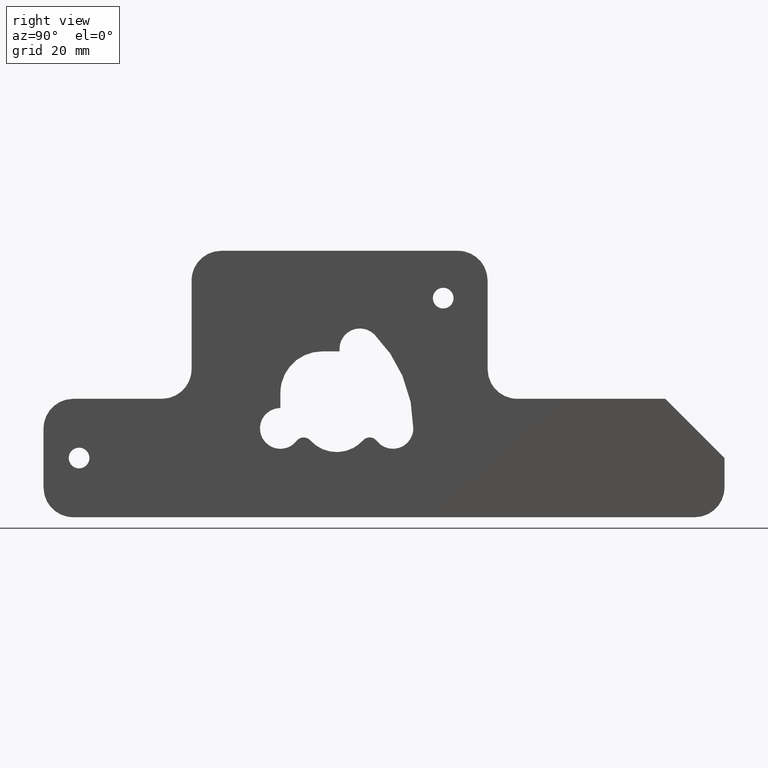
[diagram: clean part render]
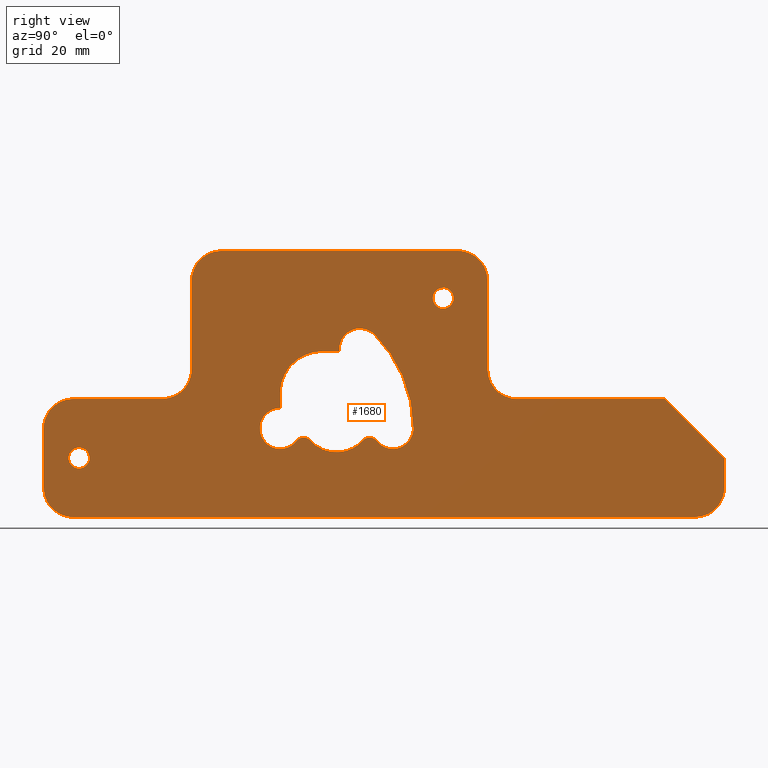
[diagram: same view with one face highlighted and labeled with its STEP entity id]
A machine part, right view. The second image highlights one B-rep face of the part: STEP entity #1680.
In plain terms, the highlighted face is a freeform B-spline surface patch.
Its self-contained STEP definition (entity closure, byte-faithful):
#96=CARTESIAN_POINT('',(3.200000000000000,-41.755394666050243,-5.137303418580988));
#97=VERTEX_POINT('',#96);
#103=CARTESIAN_POINT('',(3.200000000000000,-43.500000000000000,-3.249999999999901));
#104=VERTEX_POINT('',#103);
#105=CARTESIAN_POINT('',(3.200000000000000,-41.755394666050243,-5.137303418580988));
#106=CARTESIAN_POINT('',(3.200000000000000,-41.749999999999986,-5.068757688325588));
#107=CARTESIAN_POINT('',(3.200000000000000,-41.749999999999993,-4.999999999999901));
#108=CARTESIAN_POINT('',(3.200000000000000,-41.749999999999986,-3.249999999999901));
#109=CARTESIAN_POINT('',(3.200000000000000,-43.500000000000000,-3.249999999999901));
#117=(BOUNDED_CURVE()B_SPLINE_CURVE(2,(#105,#106,#107,#108,#109),.UNSPECIFIED.,.F.,.U.)B_SPLINE_CURVE_WITH_KNOTS((3,2,3),(0.736331300424975,0.750000000000000,1.0),.UNSPECIFIED.)CURVE()GEOMETRIC_REPRESENTATION_ITEM()RATIONAL_B_SPLINE_CURVE((0.969723355738170,0.983986122337908,1.0,0.707106781186547,1.0))REPRESENTATION_ITEM(''));
#118=EDGE_CURVE('',#97,#104,#117,.T.);
#120=CARTESIAN_POINT('',(3.200000000000000,-45.244605333949757,-4.862696581418814));
#121=VERTEX_POINT('',#120);
#122=CARTESIAN_POINT('',(3.200000000000000,-43.500000000000000,-3.249999999999901));
#123=CARTESIAN_POINT('',(3.200000000000001,-45.117683358434938,-3.249999999999901));
#124=CARTESIAN_POINT('',(3.200000000000000,-45.244605333949757,-4.862696581418814));
#132=(BOUNDED_CURVE()B_SPLINE_CURVE(2,(#122,#123,#124),.UNSPECIFIED.,.F.,.U.)B_SPLINE_CURVE_WITH_KNOTS((3,3),(0.0,0.236331300424976),.UNSPECIFIED.)CURVE()GEOMETRIC_REPRESENTATION_ITEM()RATIONAL_B_SPLINE_CURVE((1.0,0.723120658848639,0.969723355738171))REPRESENTATION_ITEM(''));
#133=EDGE_CURVE('',#104,#121,#132,.T.);
#179=CARTESIAN_POINT('',(3.200000000000000,-43.500000000000000,-6.749999999999901));
#180=VERTEX_POINT('',#179);
#181=CARTESIAN_POINT('',(3.200000000000001,-45.244605333949757,-4.862696581418815));
#182=CARTESIAN_POINT('',(3.200000000000000,-45.249999999999993,-4.931242311674215));
#183=CARTESIAN_POINT('',(3.200000000000000,-45.250000000000000,-4.999999999999901));
#184=CARTESIAN_POINT('',(3.200000000000000,-45.250000000000000,-6.749999999999902));
#185=CARTESIAN_POINT('',(3.200000000000000,-43.500000000000000,-6.749999999999901));
#193=(BOUNDED_CURVE()B_SPLINE_CURVE(2,(#181,#182,#183,#184,#185),.UNSPECIFIED.,.F.,.U.)B_SPLINE_CURVE_WITH_KNOTS((3,2,3),(0.236331300424975,0.250000000000000,0.500000000000000),.UNSPECIFIED.)CURVE()GEOMETRIC_REPRESENTATION_ITEM()RATIONAL_B_SPLINE_CURVE((0.969723355738171,0.983986122337908,1.0,0.707106781186547,1.0))REPRESENTATION_ITEM(''));
#194=EDGE_CURVE('',#121,#180,#193,.T.);
#196=CARTESIAN_POINT('',(3.200000000000000,-43.500000000000000,-6.749999999999901));
#197=CARTESIAN_POINT('',(3.200000000000000,-41.882316641565069,-6.749999999999901));
#198=CARTESIAN_POINT('',(3.200000000000001,-41.755394666050236,-5.137303418580988));
#206=(BOUNDED_CURVE()B_SPLINE_CURVE(2,(#196,#197,#198),.UNSPECIFIED.,.F.,.U.)B_SPLINE_CURVE_WITH_KNOTS((3,3),(0.500000000000000,0.736331300424975),.UNSPECIFIED.)CURVE()GEOMETRIC_REPRESENTATION_ITEM()RATIONAL_B_SPLINE_CURVE((1.0,0.723120658848641,0.969723355738169))REPRESENTATION_ITEM(''));
#207=EDGE_CURVE('',#180,#97,#206,.T.);
#278=CARTESIAN_POINT('',(3.200000000000000,19.744605333949760,21.862696581418920));
#279=VERTEX_POINT('',#278);
#285=CARTESIAN_POINT('',(3.200000000000000,18.0,23.750000000000000));
#286=VERTEX_POINT('',#285);
#287=CARTESIAN_POINT('',(3.200000000000001,19.744605333949757,21.862696581418916));
#288=CARTESIAN_POINT('',(3.200000000000000,19.750000000000004,21.931242311674314));
#289=CARTESIAN_POINT('',(3.200000000000000,19.750000000000000,22.0));
#290=CARTESIAN_POINT('',(3.200000000000000,19.749999999999996,23.749999999999996));
#291=CARTESIAN_POINT('',(3.200000000000000,18.0,23.750000000000000));
#299=(BOUNDED_CURVE()B_SPLINE_CURVE(2,(#287,#288,#289,#290,#291),.UNSPECIFIED.,.F.,.U.)B_SPLINE_CURVE_WITH_KNOTS((3,2,3),(0.736331300424976,0.750000000000000,1.0),.UNSPECIFIED.)CURVE()GEOMETRIC_REPRESENTATION_ITEM()RATIONAL_B_SPLINE_CURVE((0.969723355738171,0.983986122337908,1.0,0.707106781186547,1.0))REPRESENTATION_ITEM(''));
#300=EDGE_CURVE('',#279,#286,#299,.T.);
#302=CARTESIAN_POINT('',(3.200000000000000,16.255394666050240,22.137303418581080));
#303=VERTEX_POINT('',#302);
#304=CARTESIAN_POINT('',(3.200000000000000,18.0,23.750000000000000));
#305=CARTESIAN_POINT('',(3.200000000000001,16.382316641565065,23.750000000000004));
#306=CARTESIAN_POINT('',(3.200000000000000,16.255394666050240,22.137303418581087));
#314=(BOUNDED_CURVE()B_SPLINE_CURVE(2,(#304,#305,#306),.UNSPECIFIED.,.F.,.U.)B_SPLINE_CURVE_WITH_KNOTS((3,3),(0.0,0.236331300424975),.UNSPECIFIED.)CURVE()GEOMETRIC_REPRESENTATION_ITEM()RATIONAL_B_SPLINE_CURVE((1.0,0.723120658848639,0.969723355738171))REPRESENTATION_ITEM(''));
#315=EDGE_CURVE('',#286,#303,#314,.T.);
#361=CARTESIAN_POINT('',(3.200000000000000,18.0,20.250000000000000));
#362=VERTEX_POINT('',#361);
#363=CARTESIAN_POINT('',(3.200000000000000,16.255394666050247,22.137303418581084));
#364=CARTESIAN_POINT('',(3.200000000000000,16.249999999999996,22.068757688325686));
#365=CARTESIAN_POINT('',(3.200000000000000,16.250000000000000,22.0));
#366=CARTESIAN_POINT('',(3.200000000000000,16.249999999999993,20.249999999999993));
#367=CARTESIAN_POINT('',(3.200000000000000,18.0,20.250000000000000));
#375=(BOUNDED_CURVE()B_SPLINE_CURVE(2,(#363,#364,#365,#366,#367),.UNSPECIFIED.,.F.,.U.)B_SPLINE_CURVE_WITH_KNOTS((3,2,3),(0.236331300424975,0.250000000000000,0.500000000000000),.UNSPECIFIED.)CURVE()GEOMETRIC_REPRESENTATION_ITEM()RATIONAL_B_SPLINE_CURVE((0.969723355738170,0.983986122337908,1.0,0.707106781186547,1.0))REPRESENTATION_ITEM(''));
#376=EDGE_CURVE('',#303,#362,#375,.T.);
#378=CARTESIAN_POINT('',(3.200000000000000,18.0,20.250000000000000));
#379=CARTESIAN_POINT('',(3.200000000000000,19.617683358434917,20.249999999999996));
#380=CARTESIAN_POINT('',(3.200000000000001,19.744605333949753,21.862696581418920));
#388=(BOUNDED_CURVE()B_SPLINE_CURVE(2,(#378,#379,#380),.UNSPECIFIED.,.F.,.U.)B_SPLINE_CURVE_WITH_KNOTS((3,3),(0.500000000000000,0.736331300424975),.UNSPECIFIED.)CURVE()GEOMETRIC_REPRESENTATION_ITEM()RATIONAL_B_SPLINE_CURVE((1.0,0.723120658848641,0.969723355738169))REPRESENTATION_ITEM(''));
#389=EDGE_CURVE('',#362,#279,#388,.T.);
#445=CARTESIAN_POINT('',(3.200000000000000,6.764626871509701,-2.102435218486835));
#446=VERTEX_POINT('',#445);
#452=CARTESIAN_POINT('',(3.200000000000000,12.949999999999999,0.0));
#453=VERTEX_POINT('',#452);
#454=CARTESIAN_POINT('',(3.200000000000000,6.764626871509701,-2.102435218486837));
#455=CARTESIAN_POINT('',(3.200000000000000,8.270568713959827,-4.061740700380274));
#456=CARTESIAN_POINT('',(3.200000000000000,10.610284356979861,-3.266461180948823));
#457=CARTESIAN_POINT('',(3.200000000000000,12.949999999999891,-2.471181661517373));
#458=CARTESIAN_POINT('',(3.200000000000000,12.949999999999999,0.0));
#466=(BOUNDED_CURVE()B_SPLINE_CURVE(2,(#454,#455,#456,#457,#458),.UNSPECIFIED.,.F.,.U.)B_SPLINE_CURVE_WITH_KNOTS((3,2,3),(0.0,0.500000000000000,1.0),.UNSPECIFIED.)CURVE()GEOMETRIC_REPRESENTATION_ITEM()RATIONAL_B_SPLINE_CURVE((1.0,0.812964191323276,1.0,0.812964191323276,1.0))REPRESENTATION_ITEM(''));
#467=EDGE_CURVE('',#446,#453,#466,.T.);
#507=CARTESIAN_POINT('',(3.200000000000000,6.374547395093690,15.874547395093799));
#508=VERTEX_POINT('',#507);
#509=CARTESIAN_POINT('',(3.200000000000000,12.949999999999999,0.0));
#510=CARTESIAN_POINT('',(3.200000000000000,12.950000000000003,9.299094475276030));
#511=CARTESIAN_POINT('',(3.200000000000000,6.374547395093690,15.874547395093799));
#519=(BOUNDED_CURVE()B_SPLINE_CURVE(2,(#509,#510,#511),.UNSPECIFIED.,.F.,.U.)CURVE()GEOMETRIC_REPRESENTATION_ITEM()QUASI_UNIFORM_CURVE()RATIONAL_B_SPLINE_CURVE((1.0,0.923879532511286,1.0))REPRESENTATION_ITEM(''));
#520=EDGE_CURVE('',#453,#508,#519,.T.);
#566=CARTESIAN_POINT('',(3.200000000000000,0.485029000000000,13.435029000000201));
#567=VERTEX_POINT('',#566);
#568=CARTESIAN_POINT('',(3.200000000000000,6.374547395093682,15.874547395093790));
#569=CARTESIAN_POINT('',(3.200000000000000,4.744513316680972,17.504581473506498));
#570=CARTESIAN_POINT('',(3.200000000000000,2.614771158340536,16.622413387164141));
#571=CARTESIAN_POINT('',(3.200000000000000,0.485029000000099,15.740245300821782));
#572=CARTESIAN_POINT('',(3.200000000000000,0.485029000000000,13.435029000000201));
#580=(BOUNDED_CURVE()B_SPLINE_CURVE(2,(#568,#569,#570,#571,#572),.UNSPECIFIED.,.F.,.U.)B_SPLINE_CURVE_WITH_KNOTS((3,2,3),(0.0,0.500000000000000,1.0),.UNSPECIFIED.)CURVE()GEOMETRIC_REPRESENTATION_ITEM()RATIONAL_B_SPLINE_CURVE((1.0,0.831469612302546,1.0,0.831469612302546,1.0))REPRESENTATION_ITEM(''));
#581=EDGE_CURVE('',#508,#567,#580,.T.);
#604=CARTESIAN_POINT('',(3.200000000000000,0.485029000000000,13.0));
#605=VERTEX_POINT('',#604);
#606=CARTESIAN_POINT('',(3.200000000000000,0.485029000000000,13.0));
#607=CARTESIAN_POINT('',(3.200000000000000,0.485029000000000,13.435029000000201));
#608=QUASI_UNIFORM_CURVE('',1,(#606,#607),.UNSPECIFIED.,.F.,.U.);
#609=EDGE_CURVE('',#605,#567,#608,.T.);
#632=CARTESIAN_POINT('',(3.200000000000000,-2.500000000000000,13.0));
#633=VERTEX_POINT('',#632);
#634=CARTESIAN_POINT('',(3.200000000000000,-2.500000000000000,13.0));
#635=CARTESIAN_POINT('',(3.200000000000000,0.485029000000000,13.0));
#636=QUASI_UNIFORM_CURVE('',1,(#634,#635),.UNSPECIFIED.,.F.,.U.);
#637=EDGE_CURVE('',#633,#605,#636,.T.);
#677=CARTESIAN_POINT('',(3.200000000000000,-9.500000000000000,6.000000000000100));
#678=VERTEX_POINT('',#677);
#679=CARTESIAN_POINT('',(3.200000000000000,-2.500000000000000,13.0));
#680=CARTESIAN_POINT('',(3.200000000000000,-9.500000000000000,13.000000000000099));
#681=CARTESIAN_POINT('',(3.200000000000000,-9.500000000000000,6.000000000000100));
#689=(BOUNDED_CURVE()B_SPLINE_CURVE(2,(#679,#680,#681),.UNSPECIFIED.,.F.,.U.)CURVE()GEOMETRIC_REPRESENTATION_ITEM()QUASI_UNIFORM_CURVE()RATIONAL_B_SPLINE_CURVE((1.0,0.707106781186547,1.0))REPRESENTATION_ITEM(''));
#690=EDGE_CURVE('',#633,#678,#689,.T.);
#713=CARTESIAN_POINT('',(3.200000000000000,-9.500000000000000,3.450000000000000));
#714=VERTEX_POINT('',#713);
#715=CARTESIAN_POINT('',(3.200000000000000,-9.500000000000000,3.450000000000000));
#716=CARTESIAN_POINT('',(3.200000000000000,-9.500000000000000,6.000000000000100));
#717=QUASI_UNIFORM_CURVE('',1,(#715,#716),.UNSPECIFIED.,.F.,.U.);
#718=EDGE_CURVE('',#714,#678,#717,.T.);
#770=CARTESIAN_POINT('',(3.200000000000000,-6.764626664560860,-2.102434731092480));
#771=VERTEX_POINT('',#770);
#772=CARTESIAN_POINT('',(3.200000000000000,-9.500000000000000,3.449999999999999));
#773=CARTESIAN_POINT('',(3.200000000000000,-12.268154983296283,3.449999999999999));
#774=CARTESIAN_POINT('',(3.200000000000000,-12.868020258563091,0.747622590555284));
#775=CARTESIAN_POINT('',(3.200000000000000,-13.467885533829898,-1.954754818889431));
#776=CARTESIAN_POINT('',(3.200000000000000,-10.959714800434559,-3.125977079473279));
#777=CARTESIAN_POINT('',(3.200000000000000,-8.451544067039222,-4.297199340057126));
#778=CARTESIAN_POINT('',(3.200000000000000,-6.764626664560860,-2.102434731092480));
#786=(BOUNDED_CURVE()B_SPLINE_CURVE(2,(#772,#773,#774,#775,#776,#777,#778),.UNSPECIFIED.,.F.,.U.)B_SPLINE_CURVE_WITH_KNOTS((3,2,2,3),(0.0,0.333333333333333,0.666666666666667,1.0),.UNSPECIFIED.)CURVE()GEOMETRIC_REPRESENTATION_ITEM()RATIONAL_B_SPLINE_CURVE((1.0,0.779968653267858,1.0,0.779968653267858,1.0,0.779968653267858,1.0))REPRESENTATION_ITEM(''));
#787=EDGE_CURVE('',#714,#771,#786,.T.);
#829=CARTESIAN_POINT('',(3.200000000000000,-4.460267373332930,-2.013229990715830));
#830=VERTEX_POINT('',#829);
#831=CARTESIAN_POINT('',(3.200000000000000,-4.460267373332930,-2.013229990715830));
#832=CARTESIAN_POINT('',(3.200000000000001,-4.930644157821511,-1.490456621152774));
#833=CARTESIAN_POINT('',(3.200000000000000,-5.633357690820511,-1.517659669694363));
#834=CARTESIAN_POINT('',(3.200000000000001,-6.336071223819511,-1.544862718235952));
#835=CARTESIAN_POINT('',(3.200000000000000,-6.764626664560861,-2.102434731092479));
#843=(BOUNDED_CURVE()B_SPLINE_CURVE(2,(#831,#832,#833,#834,#835),.UNSPECIFIED.,.F.,.U.)B_SPLINE_CURVE_WITH_KNOTS((3,2,3),(0.0,0.500000000000000,1.0),.UNSPECIFIED.)CURVE()GEOMETRIC_REPRESENTATION_ITEM()RATIONAL_B_SPLINE_CURVE((1.0,0.905432286971826,1.0,0.905432286971826,1.0))REPRESENTATION_ITEM(''));
#844=EDGE_CURVE('',#830,#771,#843,.T.);
#886=CARTESIAN_POINT('',(3.200000000000000,4.460267373332910,-2.013229990715850));
#887=VERTEX_POINT('',#886);
#888=CARTESIAN_POINT('',(3.200000000000000,-4.460267373332929,-2.013229990715828));
#889=CARTESIAN_POINT('',(3.200000000000000,-2.672624544209053,-3.999999999999901));
#890=CARTESIAN_POINT('',(3.200000000000000,0.0,-3.999999999999900));
#891=CARTESIAN_POINT('',(3.200000000000000,2.672624544209034,-3.999999999999901));
#892=CARTESIAN_POINT('',(3.200000000000000,4.460267373332909,-2.013229990715852));
#900=(BOUNDED_CURVE()B_SPLINE_CURVE(2,(#888,#889,#890,#891,#892),.UNSPECIFIED.,.F.,.U.)B_SPLINE_CURVE_WITH_KNOTS((3,2,3),(0.0,0.500000000000000,1.0),.UNSPECIFIED.)CURVE()GEOMETRIC_REPRESENTATION_ITEM()RATIONAL_B_SPLINE_CURVE((1.0,0.913474593275402,1.0,0.913474593275402,1.0))REPRESENTATION_ITEM(''));
#901=EDGE_CURVE('',#830,#887,#900,.T.);
#941=CARTESIAN_POINT('',(3.200000000000000,6.764626871509701,-2.102435218486835));
#942=CARTESIAN_POINT('',(3.200000000000000,6.336071631441110,-1.544862854254390));
#943=CARTESIAN_POINT('',(3.200000000000000,5.633357946904417,-1.517659679607753));
#944=CARTESIAN_POINT('',(3.200000000000000,4.930644262367725,-1.490456504961116));
#945=CARTESIAN_POINT('',(3.200000000000000,4.460267373332910,-2.013229990715850));
#953=(BOUNDED_CURVE()B_SPLINE_CURVE(2,(#941,#942,#943,#944,#945),.UNSPECIFIED.,.F.,.U.)B_SPLINE_CURVE_WITH_KNOTS((3,2,3),(0.0,0.500000000000000,1.0),.UNSPECIFIED.)CURVE()GEOMETRIC_REPRESENTATION_ITEM()RATIONAL_B_SPLINE_CURVE((1.0,0.905432250709606,1.0,0.905432250709606,1.0))REPRESENTATION_ITEM(''));
#954=EDGE_CURVE('',#446,#887,#953,.T.);
#991=CARTESIAN_POINT('',(3.200000000000000,-29.500000000000000,5.000000000000100));
#992=VERTEX_POINT('',#991);
#998=CARTESIAN_POINT('',(3.200000000000000,-24.500000000000000,10.0));
#999=VERTEX_POINT('',#998);
#1000=CARTESIAN_POINT('',(3.200000000000000,-29.500000000000000,5.0));
#1001=CARTESIAN_POINT('',(3.200000000000000,-24.500000000000004,5.000000000000001));
#1002=CARTESIAN_POINT('',(3.200000000000000,-24.500000000000000,10.0));
#1010=(BOUNDED_CURVE()B_SPLINE_CURVE(2,(#1000,#1001,#1002),.UNSPECIFIED.,.F.,.U.)CURVE()GEOMETRIC_REPRESENTATION_ITEM()QUASI_UNIFORM_CURVE()RATIONAL_B_SPLINE_CURVE((1.0,0.707106781186548,1.0))REPRESENTATION_ITEM(''));
#1011=EDGE_CURVE('',#992,#999,#1010,.T.);
#1033=CARTESIAN_POINT('',(3.200000000000000,-44.500000000000000,5.0));
#1034=VERTEX_POINT('',#1033);
#1040=CARTESIAN_POINT('',(3.200000000000000,-44.500000000000000,5.0));
#1041=CARTESIAN_POINT('',(3.200000000000000,-29.500000000000000,5.000000000000100));
#1042=QUASI_UNIFORM_CURVE('',1,(#1040,#1041),.UNSPECIFIED.,.F.,.U.);
#1043=EDGE_CURVE('',#1034,#992,#1042,.T.);
#1078=CARTESIAN_POINT('',(3.200000000000000,-49.500000000000000,-3.030901E-015));
#1079=VERTEX_POINT('',#1078);
#1085=CARTESIAN_POINT('',(3.200000000000000,-44.500000000000000,4.999999999999997));
#1086=CARTESIAN_POINT('',(3.200000000000000,-49.499999999999993,4.999999999999997));
#1087=CARTESIAN_POINT('',(3.200000000000000,-49.499999999999993,-2.724749E-015));
#1095=(BOUNDED_CURVE()B_SPLINE_CURVE(2,(#1085,#1086,#1087),.UNSPECIFIED.,.F.,.U.)CURVE()GEOMETRIC_REPRESENTATION_ITEM()QUASI_UNIFORM_CURVE()RATIONAL_B_SPLINE_CURVE((1.0,0.707106781186548,1.0))REPRESENTATION_ITEM(''));
#1096=EDGE_CURVE('',#1034,#1079,#1095,.T.);
#1114=CARTESIAN_POINT('',(3.200000000000000,-49.500000000000000,-9.999999999999799));
#1115=VERTEX_POINT('',#1114);
#1121=CARTESIAN_POINT('',(3.200000000000000,-49.500000000000000,-9.999999999999799));
#1122=CARTESIAN_POINT('',(3.200000000000000,-49.500000000000000,-3.030901E-015));
#1123=QUASI_UNIFORM_CURVE('',1,(#1121,#1122),.UNSPECIFIED.,.F.,.U.);
#1124=EDGE_CURVE('',#1115,#1079,#1123,.T.);
#1159=CARTESIAN_POINT('',(3.200000000000000,-44.500000000000000,-15.0));
#1160=VERTEX_POINT('',#1159);
#1166=CARTESIAN_POINT('',(3.200000000000000,-49.499999999999993,-9.999999999999799));
#1167=CARTESIAN_POINT('',(3.200000000000000,-49.499999999999993,-14.999999999999796));
#1168=CARTESIAN_POINT('',(3.200000000000000,-44.500000000000000,-15.0));
#1176=(BOUNDED_CURVE()B_SPLINE_CURVE(2,(#1166,#1167,#1168),.UNSPECIFIED.,.F.,.U.)CURVE()GEOMETRIC_REPRESENTATION_ITEM()QUASI_UNIFORM_CURVE()RATIONAL_B_SPLINE_CURVE((1.0,0.707106781186548,1.0))REPRESENTATION_ITEM(''));
#1177=EDGE_CURVE('',#1115,#1160,#1176,.T.);
#1195=CARTESIAN_POINT('',(3.200000000000000,60.500000000000000,-14.999999999999799));
#1196=VERTEX_POINT('',#1195);
#1202=CARTESIAN_POINT('',(3.200000000000000,60.500000000000000,-14.999999999999799));
#1203=CARTESIAN_POINT('',(3.200000000000000,-44.500000000000000,-15.0));
#1204=QUASI_UNIFORM_CURVE('',1,(#1202,#1203),.UNSPECIFIED.,.F.,.U.);
#1205=EDGE_CURVE('',#1196,#1160,#1204,.T.);
#1240=CARTESIAN_POINT('',(3.200000000000000,65.500000000000000,-9.999999999999799));
#1241=VERTEX_POINT('',#1240);
#1247=CARTESIAN_POINT('',(3.200000000000000,60.500000000000000,-14.999999999999799));
#1248=CARTESIAN_POINT('',(3.200000000000000,65.500000000000000,-14.999999999999796));
#1249=CARTESIAN_POINT('',(3.200000000000000,65.500000000000000,-9.999999999999799));
#1257=(BOUNDED_CURVE()B_SPLINE_CURVE(2,(#1247,#1248,#1249),.UNSPECIFIED.,.F.,.U.)CURVE()GEOMETRIC_REPRESENTATION_ITEM()QUASI_UNIFORM_CURVE()RATIONAL_B_SPLINE_CURVE((1.0,0.707106781186548,1.0))REPRESENTATION_ITEM(''));
#1258=EDGE_CURVE('',#1196,#1241,#1257,.T.);
#1276=CARTESIAN_POINT('',(3.200000000000000,65.500000000000000,-4.999999999999901));
#1277=VERTEX_POINT('',#1276);
#1283=CARTESIAN_POINT('',(3.200000000000000,65.500000000000000,-4.999999999999901));
#1284=CARTESIAN_POINT('',(3.200000000000000,65.500000000000000,-9.999999999999799));
#1285=QUASI_UNIFORM_CURVE('',1,(#1283,#1284),.UNSPECIFIED.,.F.,.U.);
#1286=EDGE_CURVE('',#1277,#1241,#1285,.T.);
#1304=CARTESIAN_POINT('',(3.200000000000000,55.500000000000000,5.000000000000100));
#1305=VERTEX_POINT('',#1304);
#1311=CARTESIAN_POINT('',(3.200000000000000,55.500000000000000,5.000000000000100));
#1312=CARTESIAN_POINT('',(3.200000000000000,65.500000000000000,-4.999999999999901));
#1313=QUASI_UNIFORM_CURVE('',1,(#1311,#1312),.UNSPECIFIED.,.F.,.U.);
#1314=EDGE_CURVE('',#1305,#1277,#1313,.T.);
#1332=CARTESIAN_POINT('',(3.200000000000000,30.500000000000000,5.000000000000100));
#1333=VERTEX_POINT('',#1332);
#1339=CARTESIAN_POINT('',(3.200000000000000,30.500000000000000,5.000000000000100));
#1340=CARTESIAN_POINT('',(3.200000000000000,55.500000000000000,5.000000000000100));
#1341=QUASI_UNIFORM_CURVE('',1,(#1339,#1340),.UNSPECIFIED.,.F.,.U.);
#1342=EDGE_CURVE('',#1333,#1305,#1341,.T.);
#1377=CARTESIAN_POINT('',(3.200000000000000,25.500000000000000,10.0));
#1378=VERTEX_POINT('',#1377);
#1384=CARTESIAN_POINT('',(3.200000000000000,25.500000000000000,10.0));
#1385=CARTESIAN_POINT('',(3.200000000000000,25.499999999999993,5.000000000000001));
#1386=CARTESIAN_POINT('',(3.200000000000000,30.500000000000000,5.000000000000100));
#1394=(BOUNDED_CURVE()B_SPLINE_CURVE(2,(#1384,#1385,#1386),.UNSPECIFIED.,.F.,.U.)CURVE()GEOMETRIC_REPRESENTATION_ITEM()QUASI_UNIFORM_CURVE()RATIONAL_B_SPLINE_CURVE((1.0,0.707106781186548,1.0))REPRESENTATION_ITEM(''));
#1395=EDGE_CURVE('',#1378,#1333,#1394,.T.);
#1413=CARTESIAN_POINT('',(3.200000000000000,25.500000000000000,25.0));
#1414=VERTEX_POINT('',#1413);
#1420=CARTESIAN_POINT('',(3.200000000000000,25.500000000000000,25.0));
#1421=CARTESIAN_POINT('',(3.200000000000000,25.500000000000000,10.0));
#1422=QUASI_UNIFORM_CURVE('',1,(#1420,#1421),.UNSPECIFIED.,.F.,.U.);
#1423=EDGE_CURVE('',#1414,#1378,#1422,.T.);
#1458=CARTESIAN_POINT('',(3.200000000000000,20.500000000000000,30.0));
#1459=VERTEX_POINT('',#1458);
#1465=CARTESIAN_POINT('',(3.200000000000000,25.500000000000000,25.0));
#1466=CARTESIAN_POINT('',(3.200000000000000,25.500000000000007,30.000000000000004));
#1467=CARTESIAN_POINT('',(3.200000000000000,20.500000000000000,30.0));
#1475=(BOUNDED_CURVE()B_SPLINE_CURVE(2,(#1465,#1466,#1467),.UNSPECIFIED.,.F.,.U.)CURVE()GEOMETRIC_REPRESENTATION_ITEM()QUASI_UNIFORM_CURVE()RATIONAL_B_SPLINE_CURVE((1.0,0.707106781186548,1.0))REPRESENTATION_ITEM(''));
#1476=EDGE_CURVE('',#1414,#1459,#1475,.T.);
#1494=CARTESIAN_POINT('',(3.200000000000000,-19.500000000000000,30.0));
#1495=VERTEX_POINT('',#1494);
#1501=CARTESIAN_POINT('',(3.200000000000000,-19.500000000000000,30.0));
#1502=CARTESIAN_POINT('',(3.200000000000000,20.500000000000000,30.0));
#1503=QUASI_UNIFORM_CURVE('',1,(#1501,#1502),.UNSPECIFIED.,.F.,.U.);
#1504=EDGE_CURVE('',#1495,#1459,#1503,.T.);
#1539=CARTESIAN_POINT('',(3.200000000000000,-24.500000000000000,25.0));
#1540=VERTEX_POINT('',#1539);
#1546=CARTESIAN_POINT('',(3.200000000000000,-19.500000000000000,30.0));
#1547=CARTESIAN_POINT('',(3.200000000000000,-24.500000000000004,30.000000000000004));
#1548=CARTESIAN_POINT('',(3.200000000000000,-24.500000000000000,25.0));
#1556=(BOUNDED_CURVE()B_SPLINE_CURVE(2,(#1546,#1547,#1548),.UNSPECIFIED.,.F.,.U.)CURVE()GEOMETRIC_REPRESENTATION_ITEM()QUASI_UNIFORM_CURVE()RATIONAL_B_SPLINE_CURVE((1.0,0.707106781186548,1.0))REPRESENTATION_ITEM(''));
#1557=EDGE_CURVE('',#1495,#1540,#1556,.T.);
#1574=CARTESIAN_POINT('',(3.200000000000000,-24.500000000000000,10.0));
#1575=CARTESIAN_POINT('',(3.200000000000000,-24.500000000000000,25.0));
#1576=QUASI_UNIFORM_CURVE('',1,(#1574,#1575),.UNSPECIFIED.,.F.,.U.);
#1577=EDGE_CURVE('',#999,#1540,#1576,.T.);
#1632=CARTESIAN_POINT('',(3.200000000000000,-55.244249777107697,32.247749912781259));
#1633=CARTESIAN_POINT('',(3.200000000000000,71.244252861648050,32.247749912781259));
#1634=CARTESIAN_POINT('',(3.200000000000000,-55.244249777107697,-17.247751119775319));
#1635=CARTESIAN_POINT('',(3.200000000000000,71.244252861648050,-17.247751119775319));
#1636=B_SPLINE_SURFACE_WITH_KNOTS('',1,1,((#1632,#1634),(#1633,#1635)),.UNSPECIFIED.,.F.,.F.,.U.,(2,2),(2,2),(0.0,126.488502638755800),(0.0,49.495501032556582),.UNSPECIFIED.);
#1637=ORIENTED_EDGE('',*,*,#1577,.F.);
#1638=ORIENTED_EDGE('',*,*,#1011,.F.);
#1639=ORIENTED_EDGE('',*,*,#1043,.F.);
#1640=ORIENTED_EDGE('',*,*,#1096,.T.);
#1641=ORIENTED_EDGE('',*,*,#1124,.F.);
#1642=ORIENTED_EDGE('',*,*,#1177,.T.);
#1643=ORIENTED_EDGE('',*,*,#1205,.F.);
#1644=ORIENTED_EDGE('',*,*,#1258,.T.);
#1645=ORIENTED_EDGE('',*,*,#1286,.F.);
#1646=ORIENTED_EDGE('',*,*,#1314,.F.);
#1647=ORIENTED_EDGE('',*,*,#1342,.F.);
#1648=ORIENTED_EDGE('',*,*,#1395,.F.);
#1649=ORIENTED_EDGE('',*,*,#1423,.F.);
#1650=ORIENTED_EDGE('',*,*,#1476,.T.);
#1651=ORIENTED_EDGE('',*,*,#1504,.F.);
#1652=ORIENTED_EDGE('',*,*,#1557,.T.);
#1653=EDGE_LOOP('',(#1637,#1638,#1639,#1640,#1641,#1642,#1643,#1644,#1645,#1646,#1647,#1648,#1649,#1650,#1651,#1652));
#1654=FACE_OUTER_BOUND('',#1653,.T.);
#1655=ORIENTED_EDGE('',*,*,#954,.T.);
#1656=ORIENTED_EDGE('',*,*,#901,.F.);
#1657=ORIENTED_EDGE('',*,*,#844,.T.);
#1658=ORIENTED_EDGE('',*,*,#787,.F.);
#1659=ORIENTED_EDGE('',*,*,#718,.T.);
#1660=ORIENTED_EDGE('',*,*,#690,.F.);
#1661=ORIENTED_EDGE('',*,*,#637,.T.);
#1662=ORIENTED_EDGE('',*,*,#609,.T.);
#1663=ORIENTED_EDGE('',*,*,#581,.F.);
#1664=ORIENTED_EDGE('',*,*,#520,.F.);
#1665=ORIENTED_EDGE('',*,*,#467,.F.);
#1666=EDGE_LOOP('',(#1655,#1656,#1657,#1658,#1659,#1660,#1661,#1662,#1663,#1664,#1665));
#1667=FACE_BOUND('',#1666,.T.);
#1668=ORIENTED_EDGE('',*,*,#389,.F.);
#1669=ORIENTED_EDGE('',*,*,#376,.F.);
#1670=ORIENTED_EDGE('',*,*,#315,.F.);
#1671=ORIENTED_EDGE('',*,*,#300,.F.);
#1672=EDGE_LOOP('',(#1668,#1669,#1670,#1671));
#1673=FACE_BOUND('',#1672,.T.);
#1674=ORIENTED_EDGE('',*,*,#207,.F.);
#1675=ORIENTED_EDGE('',*,*,#194,.F.);
#1676=ORIENTED_EDGE('',*,*,#133,.F.);
#1677=ORIENTED_EDGE('',*,*,#118,.F.);
#1678=EDGE_LOOP('',(#1674,#1675,#1676,#1677));
#1679=FACE_BOUND('',#1678,.T.);
#1680=ADVANCED_FACE('',(#1654,#1667,#1673,#1679),#1636,.F.);